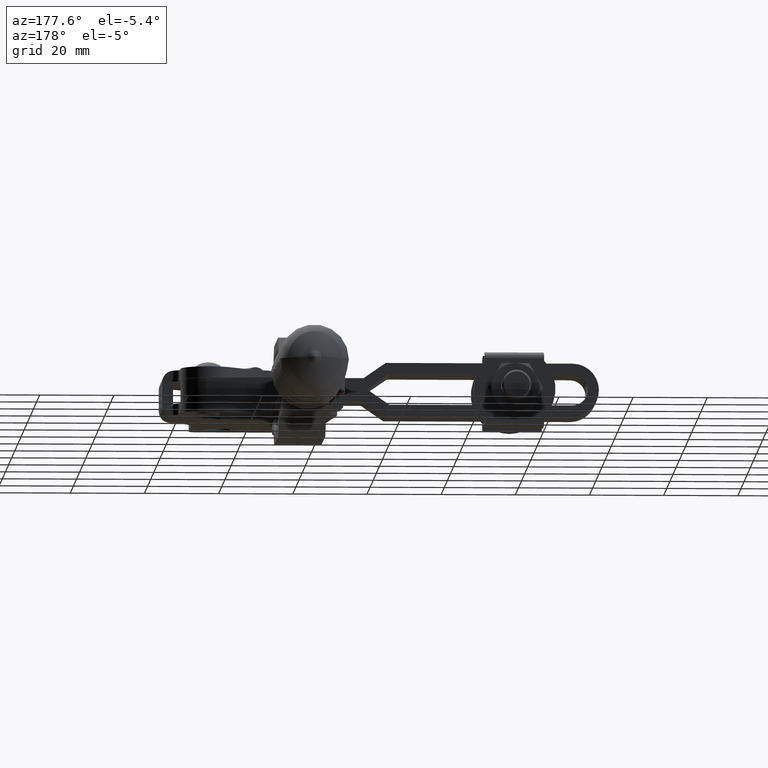
[diagram: clean part render]
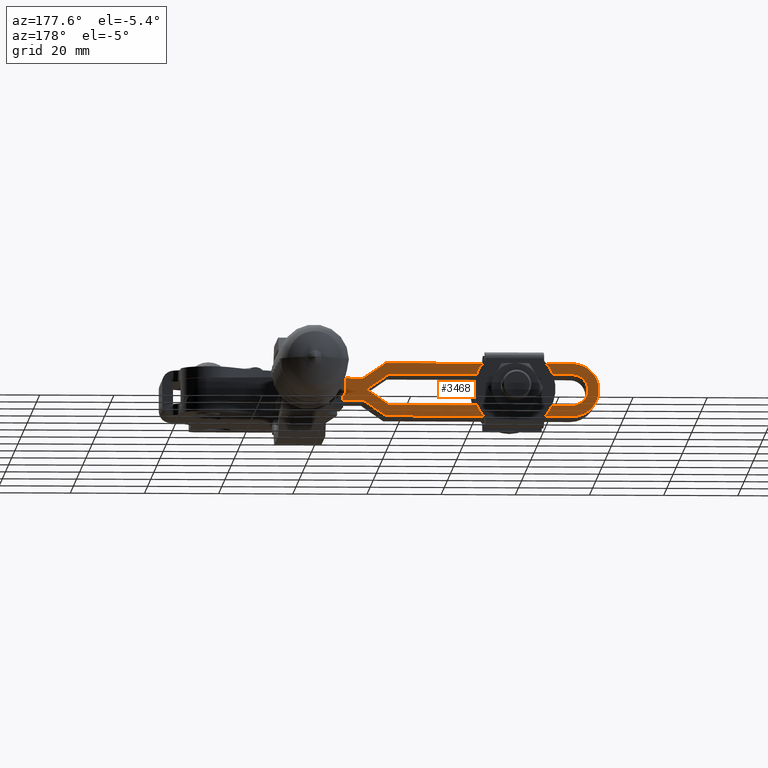
[diagram: same view with one face highlighted and labeled with its STEP entity id]
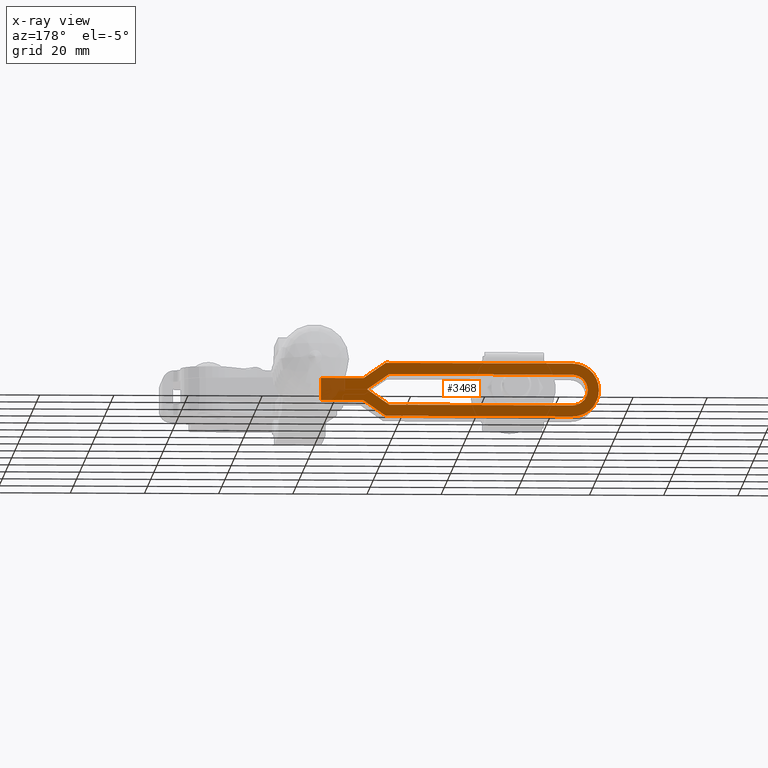
[diagram: x-ray of the same camera — body ghosted, the highlighted face saturated]
A machine part, auxiliary view. The second image highlights one B-rep face of the part: STEP entity #3468.
The next image is the same camera in x-ray: the body ghosted, the highlighted face saturated — about 7% of this face is hidden behind the body in this view.
In plain terms, the highlighted planar face has unit normal (0, 1, -0).
Its self-contained STEP definition (entity closure, byte-faithful):
#58 = VERTEX_POINT ( 'NONE', #12157 ) ;
#76 = CARTESIAN_POINT ( 'NONE',  ( -110.0364158414750100, 47.80000000000025300, 7.150000000000155800 ) ) ;
#92 = VERTEX_POINT ( 'NONE', #7429 ) ;
#180 = LINE ( 'NONE', #9250, #4832 ) ;
#311 = AXIS2_PLACEMENT_3D ( 'NONE', #9079, #2388, #2287 ) ;
#346 = DIRECTION ( 'NONE',  ( -1.000000000000000000, 6.475452256180996100E-015, 6.244988381752342700E-016 ) ) ;
#393 = EDGE_CURVE ( 'NONE', #58, #12129, #4613, .T. ) ;
#682 = VECTOR ( 'NONE', #8025, 1000.000000000000000 ) ;
#758 = DIRECTION ( 'NONE',  ( 6.475452256180996100E-015, 1.000000000000000000, -1.914408056407651500E-018 ) ) ;
#827 = CARTESIAN_POINT ( 'NONE',  ( -42.19016994374904800, 47.79999999999981200, -7.150000000000060800 ) ) ;
#994 = VECTOR ( 'NONE', #4945, 1000.000000000000000 ) ;
#1084 = DIRECTION ( 'NONE',  ( 1.000000000000000000, -6.475452256180996900E-015, -6.244988381752342700E-016 ) ) ;
#1101 = CARTESIAN_POINT ( 'NONE',  ( -117.2000000000004000, 47.80000000000030300, -7.150000000000013700 ) ) ;
#1125 = LINE ( 'NONE', #9555, #8734 ) ;
#1151 = CARTESIAN_POINT ( 'NONE',  ( -110.0364158414750100, 47.80000000000025300, 6.812731629084440700E-014 ) ) ;
#1206 = DIRECTION ( 'NONE',  ( -0.8224388460565428300, 5.324574463477053200E-015, -0.5688535351891401700 ) ) ;
#1325 = CARTESIAN_POINT ( 'NONE',  ( -117.2000000000004000, 47.80000000000030300, -7.150000000000013700 ) ) ;
#1547 = ORIENTED_EDGE ( 'NONE', *, *, #7551, .T. ) ;
#1558 = LINE ( 'NONE', #3831, #3859 ) ;
#1690 = ORIENTED_EDGE ( 'NONE', *, *, #9659, .T. ) ;
#1810 = CARTESIAN_POINT ( 'NONE',  ( -59.69999999999927100, 47.79999999999992600, -7.150000000000057200 ) ) ;
#1848 = VERTEX_POINT ( 'NONE', #4837 ) ;
#1894 = DIRECTION ( 'NONE',  ( -1.000000000000000000, 6.475452256180996100E-015, 8.702451812607125000E-016 ) ) ;
#1928 = CARTESIAN_POINT ( 'NONE',  ( -60.63641584147499900, 47.79999999999993300, 4.150000000000134500 ) ) ;
#1936 = ORIENTED_EDGE ( 'NONE', *, *, #8392, .T. ) ;
#1981 = VECTOR ( 'NONE', #2921, 1000.000000000000000 ) ;
#1996 = ORIENTED_EDGE ( 'NONE', *, *, #9361, .F. ) ;
#2128 = DIRECTION ( 'NONE',  ( 1.000000000000000000, -6.793322703125875600E-015, -6.244988381752338800E-016 ) ) ;
#2205 = VERTEX_POINT ( 'NONE', #1928 ) ;
#2287 = DIRECTION ( 'NONE',  ( 1.000000000000000000, -6.688090509789941400E-015, -6.244988381752322000E-016 ) ) ;
#2322 = DIRECTION ( 'NONE',  ( 1.000000000000000000, -6.475452256180996100E-015, -6.244988381752342700E-016 ) ) ;
#2367 = ORIENTED_EDGE ( 'NONE', *, *, #6058, .F. ) ;
#2388 = DIRECTION ( 'NONE',  ( 6.475452256180996100E-015, 1.000000000000000000, -1.914408056407651500E-018 ) ) ;
#2419 = CARTESIAN_POINT ( 'NONE',  ( -53.69999999999947000, 47.79999999999988300, -2.999999999999966200 ) ) ;
#2475 = CARTESIAN_POINT ( 'NONE',  ( -42.19016994374904100, 47.79999999999980500, 5.000000002546047800E-005 ) ) ;
#2591 = ORIENTED_EDGE ( 'NONE', *, *, #11187, .F. ) ;
#2659 = CARTESIAN_POINT ( 'NONE',  ( -110.0364158414750100, 47.80000000000025300, 6.812731629084440700E-014 ) ) ;
#2674 = EDGE_CURVE ( 'NONE', #12129, #6688, #5726, .T. ) ;
#2801 = EDGE_LOOP ( 'NONE', ( #6852, #8773, #11240, #12607, #1690, #1936, #1547, #9645, #8188, #10923, #2367, #1996, #2591, #8574, #4235, #4391, #4070, #11318 ) ) ;
#2854 = CARTESIAN_POINT ( 'NONE',  ( -110.0364158414750100, 47.80000000000025300, 4.150000000000162900 ) ) ;
#2863 = VERTEX_POINT ( 'NONE', #76 ) ;
#2898 = EDGE_CURVE ( 'NONE', #7060, #4643, #4936, .T. ) ;
#2921 = DIRECTION ( 'NONE',  ( -1.000000000000000000, 6.475452256180996900E-015, 6.244988381752342700E-016 ) ) ;
#3088 = CARTESIAN_POINT ( 'NONE',  ( -53.69999999999948400, 47.79999999999988300, 3.000000000000035500 ) ) ;
#3171 = EDGE_CURVE ( 'NONE', #6982, #6679, #12838, .T. ) ;
#3468 = ADVANCED_FACE ( 'NONE', ( #11160 ), #7256, .T. ) ;
#3473 = LINE ( 'NONE', #12141, #11070 ) ;
#3645 = DIRECTION ( 'NONE',  ( 1.000000000000000000, -6.793322703125875600E-015, -6.244988381752338800E-016 ) ) ;
#3756 = CARTESIAN_POINT ( 'NONE',  ( -114.1864158414751000, 47.80000000000028100, 7.073430173372290500E-014 ) ) ;
#3778 = VERTEX_POINT ( 'NONE', #5773 ) ;
#3831 = CARTESIAN_POINT ( 'NONE',  ( -117.2000000000004000, 47.80000000000030300, -4.999999989847914600E-005 ) ) ;
#3859 = VECTOR ( 'NONE', #1894, 1000.000000000000000 ) ;
#3919 = AXIS2_PLACEMENT_3D ( 'NONE', #2659, #9583, #3645 ) ;
#4070 = ORIENTED_EDGE ( 'NONE', *, *, #11602, .F. ) ;
#4235 = ORIENTED_EDGE ( 'NONE', *, *, #2898, .F. ) ;
#4391 = ORIENTED_EDGE ( 'NONE', *, *, #6325, .F. ) ;
#4403 = LINE ( 'NONE', #9306, #11972 ) ;
#4509 = LINE ( 'NONE', #5288, #9485 ) ;
#4613 = LINE ( 'NONE', #5027, #1981 ) ;
#4643 = VERTEX_POINT ( 'NONE', #2854 ) ;
#4661 = LINE ( 'NONE', #3088, #9656 ) ;
#4771 = DIRECTION ( 'NONE',  ( 0.8224388460565420500, -5.326752499058412000E-015, -0.5688535351891411700 ) ) ;
#4832 = VECTOR ( 'NONE', #11263, 1000.000000000000000 ) ;
#4837 = CARTESIAN_POINT ( 'NONE',  ( -117.1864158414750800, 47.80000000000030300, 7.260779824824860500E-014 ) ) ;
#4936 = CIRCLE ( 'NONE', #311, 4.150000000000098100 ) ;
#4945 = DIRECTION ( 'NONE',  ( 0.8224388460565609200, -5.326752499058534300E-015, -0.5688535351891139700 ) ) ;
#5027 = CARTESIAN_POINT ( 'NONE',  ( -53.69999999999948400, 47.79999999999988300, -2.999999999999969800 ) ) ;
#5238 = VERTEX_POINT ( 'NONE', #9644 ) ;
#5288 = CARTESIAN_POINT ( 'NONE',  ( -117.2000000000004000, 47.80000000000030300, 7.150000000000159300 ) ) ;
#5726 = LINE ( 'NONE', #1810, #10703 ) ;
#5763 = VERTEX_POINT ( 'NONE', #10725 ) ;
#5773 = CARTESIAN_POINT ( 'NONE',  ( -110.0364158414750100, 47.80000000000025300, -7.150000000000018100 ) ) ;
#5818 = LINE ( 'NONE', #12509, #11109 ) ;
#5932 = LINE ( 'NONE', #1101, #682 ) ;
#5978 = CARTESIAN_POINT ( 'NONE',  ( -42.19016994374904100, 47.79999999999981200, 3.000000000000028400 ) ) ;
#6058 = EDGE_CURVE ( 'NONE', #9395, #10255, #180, .T. ) ;
#6141 = CARTESIAN_POINT ( 'NONE',  ( -110.0364158414750100, 47.80000000000009000, -4.150000000000026100 ) ) ;
#6215 = DIRECTION ( 'NONE',  ( -0.8224388460565624800, 5.324574463477180200E-015, -0.5688535351891115300 ) ) ;
#6325 = EDGE_CURVE ( 'NONE', #8090, #7060, #8720, .T. ) ;
#6537 = EDGE_CURVE ( 'NONE', #6679, #10255, #4661, .T. ) ;
#6541 = DIRECTION ( 'NONE',  ( 1.000000000000000000, -6.475452256180996900E-015, -5.542671185000599300E-016 ) ) ;
#6679 = VERTEX_POINT ( 'NONE', #6892 ) ;
#6688 = VERTEX_POINT ( 'NONE', #10836 ) ;
#6694 = CARTESIAN_POINT ( 'NONE',  ( -110.0364158414750100, 47.80000000000025300, 6.812731629084440700E-014 ) ) ;
#6852 = ORIENTED_EDGE ( 'NONE', *, *, #7099, .F. ) ;
#6892 = CARTESIAN_POINT ( 'NONE',  ( -53.69999999999947000, 47.79999999999988300, 3.000000000000032000 ) ) ;
#6982 = VERTEX_POINT ( 'NONE', #11575 ) ;
#7035 = VERTEX_POINT ( 'NONE', #9670 ) ;
#7060 = VERTEX_POINT ( 'NONE', #3756 ) ;
#7099 = EDGE_CURVE ( 'NONE', #5763, #5238, #1558, .T. ) ;
#7112 = EDGE_CURVE ( 'NONE', #58, #5763, #11780, .T. ) ;
#7256 = PLANE ( 'NONE',  #7558 ) ;
#7325 = DIRECTION ( 'NONE',  ( 1.000000000000000000, -6.475452256180996100E-015, -6.244988381752342700E-016 ) ) ;
#7429 = CARTESIAN_POINT ( 'NONE',  ( -54.63648813063139900, 47.79999999999991200, 5.000000003323319100E-005 ) ) ;
#7551 = EDGE_CURVE ( 'NONE', #1848, #2863, #9615, .T. ) ;
#7558 = AXIS2_PLACEMENT_3D ( 'NONE', #1325, #8253, #2322 ) ;
#7682 = DIRECTION ( 'NONE',  ( 1.000000000000000000, -6.688090509789941400E-015, -6.244988381752322000E-016 ) ) ;
#8025 = DIRECTION ( 'NONE',  ( -1.000000000000000000, 6.475452256180996100E-015, 6.244988381752342700E-016 ) ) ;
#8072 = DIRECTION ( 'NONE',  ( 6.475452256180996100E-015, 1.000000000000000000, -1.914408056407651500E-018 ) ) ;
#8090 = VERTEX_POINT ( 'NONE', #6141 ) ;
#8188 = ORIENTED_EDGE ( 'NONE', *, *, #3171, .T. ) ;
#8253 = DIRECTION ( 'NONE',  ( 6.475452256180996100E-015, 1.000000000000000000, -1.914408056407651500E-018 ) ) ;
#8392 = EDGE_CURVE ( 'NONE', #3778, #1848, #8648, .T. ) ;
#8574 = ORIENTED_EDGE ( 'NONE', *, *, #8786, .F. ) ;
#8648 = CIRCLE ( 'NONE', #3919, 7.150000000000086500 ) ;
#8720 = CIRCLE ( 'NONE', #12153, 4.150000000000098100 ) ;
#8734 = VECTOR ( 'NONE', #11490, 1000.000000000000000 ) ;
#8773 = ORIENTED_EDGE ( 'NONE', *, *, #7112, .F. ) ;
#8786 = EDGE_CURVE ( 'NONE', #4643, #2205, #5818, .T. ) ;
#9079 = CARTESIAN_POINT ( 'NONE',  ( -110.0364158414750100, 47.80000000000025300, 6.812731629084440700E-014 ) ) ;
#9250 = CARTESIAN_POINT ( 'NONE',  ( -42.19016994374904800, 47.79999999999981200, -7.150000000000060800 ) ) ;
#9306 = CARTESIAN_POINT ( 'NONE',  ( -117.2000000000004000, 47.80000000000030300, 5.000000007230403600E-005 ) ) ;
#9361 = EDGE_CURVE ( 'NONE', #92, #9395, #4403, .T. ) ;
#9395 = VERTEX_POINT ( 'NONE', #2475 ) ;
#9485 = VECTOR ( 'NONE', #346, 1000.000000000000000 ) ;
#9555 = CARTESIAN_POINT ( 'NONE',  ( -110.0364158414750200, 47.80000000000025300, -4.150000000000026100 ) ) ;
#9583 = DIRECTION ( 'NONE',  ( 6.475452256180996100E-015, 1.000000000000000000, -1.914408056407651500E-018 ) ) ;
#9615 = CIRCLE ( 'NONE', #11998, 7.150000000000086500 ) ;
#9644 = CARTESIAN_POINT ( 'NONE',  ( -54.63648813063137800, 47.80000000000009000, -4.999999995316250200E-005 ) ) ;
#9645 = ORIENTED_EDGE ( 'NONE', *, *, #12536, .F. ) ;
#9656 = VECTOR ( 'NONE', #1084, 1000.000000000000000 ) ;
#9659 = EDGE_CURVE ( 'NONE', #6688, #3778, #5932, .T. ) ;
#9670 = CARTESIAN_POINT ( 'NONE',  ( -60.63641584147499900, 47.79999999999993300, -4.150000000000046500 ) ) ;
#9758 = EDGE_CURVE ( 'NONE', #5238, #7035, #3473, .T. ) ;
#9823 = DIRECTION ( 'NONE',  ( 6.244988381752344700E-016, 1.914408056403607800E-018, 1.000000000000000000 ) ) ;
#10239 = VECTOR ( 'NONE', #4771, 1000.000000000000000 ) ;
#10255 = VERTEX_POINT ( 'NONE', #5978 ) ;
#10320 = LINE ( 'NONE', #10899, #994 ) ;
#10703 = VECTOR ( 'NONE', #1206, 1000.000000000000100 ) ;
#10725 = CARTESIAN_POINT ( 'NONE',  ( -42.19016994374904100, 47.79999999999980500, -4.999999996389826600E-005 ) ) ;
#10836 = CARTESIAN_POINT ( 'NONE',  ( -59.69999999999926400, 47.79999999999992600, -7.150000000000049200 ) ) ;
#10899 = CARTESIAN_POINT ( 'NONE',  ( -60.63641584147501400, 47.79999999999993300, 4.150000000000143400 ) ) ;
#10923 = ORIENTED_EDGE ( 'NONE', *, *, #6537, .T. ) ;
#11070 = VECTOR ( 'NONE', #6215, 1000.000000000000300 ) ;
#11109 = VECTOR ( 'NONE', #6541, 1000.000000000000000 ) ;
#11160 = FACE_OUTER_BOUND ( 'NONE', #2801, .T. ) ;
#11187 = EDGE_CURVE ( 'NONE', #2205, #92, #10320, .T. ) ;
#11240 = ORIENTED_EDGE ( 'NONE', *, *, #393, .T. ) ;
#11263 = DIRECTION ( 'NONE',  ( 6.244988381752344700E-016, 1.914408056403607800E-018, 1.000000000000000000 ) ) ;
#11318 = ORIENTED_EDGE ( 'NONE', *, *, #9758, .F. ) ;
#11480 = VECTOR ( 'NONE', #9823, 1000.000000000000000 ) ;
#11490 = DIRECTION ( 'NONE',  ( -1.000000000000000000, 6.475452256180996900E-015, 4.138036791497111500E-016 ) ) ;
#11575 = CARTESIAN_POINT ( 'NONE',  ( -59.69999999999929200, 47.79999999999992600, 7.150000000000136200 ) ) ;
#11602 = EDGE_CURVE ( 'NONE', #7035, #8090, #1125, .T. ) ;
#11780 = LINE ( 'NONE', #827, #11480 ) ;
#11972 = VECTOR ( 'NONE', #7325, 1000.000000000000000 ) ;
#11998 = AXIS2_PLACEMENT_3D ( 'NONE', #1151, #8072, #2128 ) ;
#12129 = VERTEX_POINT ( 'NONE', #2419 ) ;
#12141 = CARTESIAN_POINT ( 'NONE',  ( -60.63641584147501400, 47.79999999999993300, -4.150000000000054500 ) ) ;
#12153 = AXIS2_PLACEMENT_3D ( 'NONE', #6694, #758, #7682 ) ;
#12157 = CARTESIAN_POINT ( 'NONE',  ( -42.19016994374904100, 47.79999999999981200, -2.999999999999976900 ) ) ;
#12509 = CARTESIAN_POINT ( 'NONE',  ( -110.0364158414750200, 47.80000000000025300, 4.150000000000162900 ) ) ;
#12536 = EDGE_CURVE ( 'NONE', #6982, #2863, #4509, .T. ) ;
#12607 = ORIENTED_EDGE ( 'NONE', *, *, #2674, .T. ) ;
#12706 = CARTESIAN_POINT ( 'NONE',  ( -59.69999999999926400, 47.79999999999992600, 7.150000000000131800 ) ) ;
#12838 = LINE ( 'NONE', #12706, #10239 ) ;